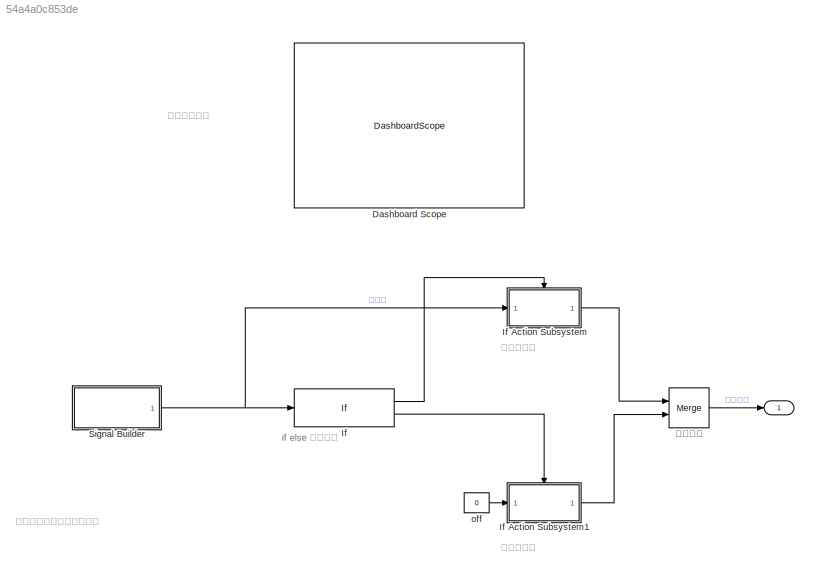
MODEL slx_54a4a0c853de
KIND model
CONFIG AbsTol = auto
CONFIG EnableMultiTasking = off
CONFIG FixedStep = 0.01
CONFIG MaxStep = auto
CONFIG MinStep = auto
CONFIG RelTol = 1e-3
CONFIG SampleTimeConstraint = Unconstrained
CONFIG Solver = FixedStepAuto
CONFIG SolverName = FixedStepAuto
CONFIG StartTime = 0.0
CONFIG StopTime = 20
BLOCK [Outport]  
BLOCK [DashboardScope] Dashboard Scope
  Ymax = 1
  Ymin = 0
BLOCK [If] If
  Ports = [1, 2]
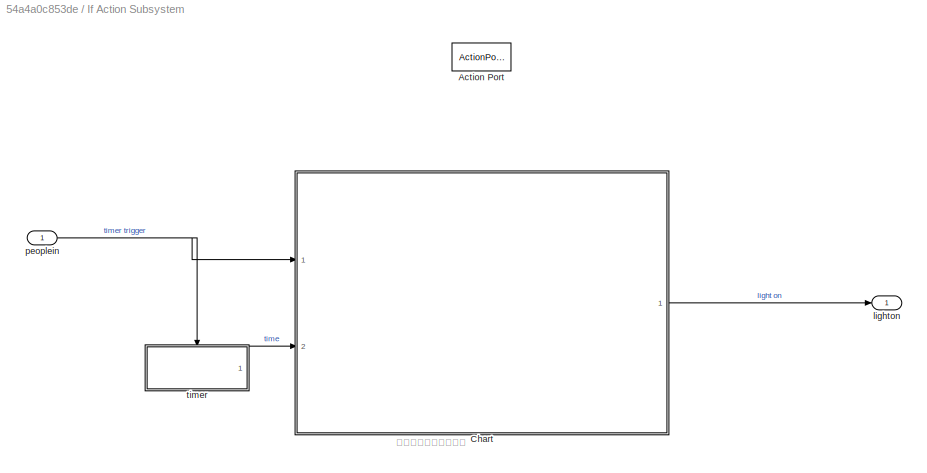
BLOCK [SubSystem] If Action Subsystem
  Ports = [1, 1, 0, 0, 0, 0, 0, 1]
  RequestExecContextInheritance = off
  TreatAsAtomicUnit = on
BLOCK [ActionPort] If Action Subsystem/Action Port
  ActionPortLabel = if(u1 > 0)
  InitializeStates = reset
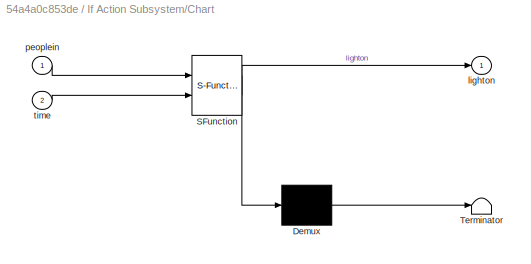
BLOCK [SubSystem] If Action Subsystem/Chart
  ErrorFcn = Stateflow.Translate.translate
  PermitHierarchicalResolution = ExplicitOnly
  Ports = [2, 1]
  RequestExecContextInheritance = off
  SFBlockType = Chart
  TreatAsAtomicUnit = on
BLOCK [Demux] If Action Subsystem/Chart/ Demux 
  Outputs = 1
  Ports = [1, 1]
BLOCK [S-Function] If Action Subsystem/Chart/ SFunction 
  EnableBusSupport = on
  FunctionName = sf_sfun
  PortCounts = [2 2]
  Ports = [2, 2]
  SFcnIsStateOwnerBlock = off
  SFunctionDeploymentMode = off
  Tag = Stateflow S-Function 3
BLOCK [Terminator] If Action Subsystem/Chart/ Terminator 
BLOCK [Outport] If Action Subsystem/Chart/lighton
BLOCK [Inport] If Action Subsystem/Chart/peoplein
BLOCK [Inport] If Action Subsystem/Chart/time
  Port = 2
BLOCK [Outport] If Action Subsystem/lighton
BLOCK [Inport] If Action Subsystem/peoplein
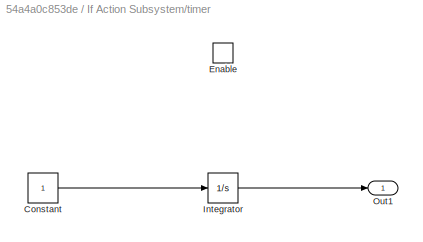
BLOCK [SubSystem] If Action Subsystem/timer
  Ports = [0, 1, 1]
  RequestExecContextInheritance = off
BLOCK [Constant] If Action Subsystem/timer/Constant
BLOCK [EnablePort] If Action Subsystem/timer/Enable
  Ports = []
BLOCK [Integrator] If Action Subsystem/timer/Integrator
  Ports = [1, 1]
BLOCK [Outport] If Action Subsystem/timer/Out1
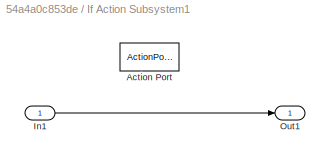
BLOCK [SubSystem] If Action Subsystem1
  Ports = [1, 1, 0, 0, 0, 0, 0, 1]
  RequestExecContextInheritance = off
  TreatAsAtomicUnit = on
BLOCK [ActionPort] If Action Subsystem1/Action Port
  ActionPortLabel = else
BLOCK [Inport] If Action Subsystem1/In1
BLOCK [Outport] If Action Subsystem1/Out1
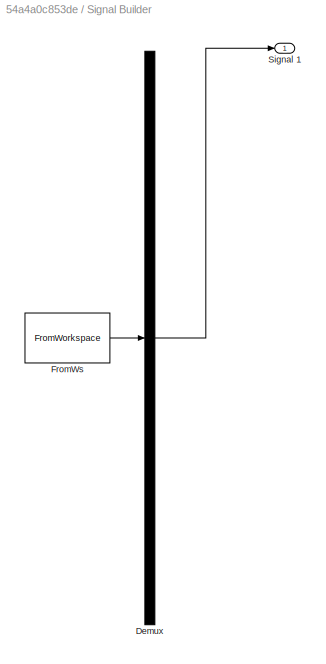
BLOCK [SubSystem] Signal Builder
  ClipboardFcn = sigbuilder_block('clipboard');
  CloseFcn = sigbuilder_block('close');
  ContinueFcn = sigbuilder_block('continue');
  CopyFcn = sigbuilder_block('copy');
  DeleteFcn = sigbuilder_block('delete');
  LoadFcn = sigbuilder_block('load');
  MaskHideContents = on
  ModelCloseFcn = sigbuilder_block('modelClose');
  NameChangeFcn = sigbuilder_block('namechange');
  OpenFcn = sigbuilder_block('open',[542.25 217.5 550.5 358.5 ]);
  PauseFcn = sigbuilder_block('pause');
  Ports = [0, 1]
  PreSaveFcn = sigbuilder_block('preSave');
  RequestExecContextInheritance = off
  StartFcn = sigbuilder_block('start');
  StopFcn = sigbuilder_block('stop');
  Tag = STV Subsys
BLOCK [Demux] Signal Builder/Demux
  DisplayOption = none
  Outputs = 1
  Ports = [1, 1]
  Tag = STV Demux
BLOCK [FromWorkspace] Signal Builder/FromWs
  Tag = STV FromWs
  VariableName = tuvar
BLOCK [Outport] Signal Builder/Signal 1
  Tag = STV Outport
BLOCK [Constant] off
  SampleTime = -1
  Value = 0
  VectorParams1D = off
BLOCK [Merge] 合并信号
  Ports = [2, 1]
ANNOTATION (root): if else 条件判断
ANNOTATION (root): 未进入区域
ANNOTATION (root): 模拟人经过照明区域的情况
ANNOTATION (root): 灯光控制效果
ANNOTATION (root): 进入了区域
ANNOTATION If Action Subsystem: 灯光覆盖区域状态监测
LINE If Action Subsystem/Chart:1 -> If Action Subsystem/lighton:1
NET If Action Subsystem/peoplein:1 -> If Action Subsystem/Chart:1, If Action Subsystem/timer:enable
LINE If Action Subsystem/timer/Constant:1 -> If Action Subsystem/timer/Integrator:1
LINE If Action Subsystem/timer/Integrator:1 -> If Action Subsystem/timer/Out1:1
LINE If Action Subsystem/timer:1 -> If Action Subsystem/Chart:2
LINE If Action Subsystem1/In1:1 -> If Action Subsystem1/Out1:1
LINE If Action Subsystem1:1 -> 合并信号:2
LINE If Action Subsystem:1 -> 合并信号:1
LINE If:1 -> If Action Subsystem:ifaction
LINE If:2 -> If Action Subsystem1:ifaction
NET Signal Builder:1 -> If Action Subsystem:1, If:1
LINE off:1 -> If Action Subsystem1:1
LINE 合并信号:1 ->  :1
note: NET lines group one-source signal fan-out (src -> all destinations, sorted); 1:1 wires keep LINE
CHART If Action
Subsystem/Chart states=2 transitions=3
  STATE_LABEL 'Leave_area\n\nen:lighton = 1;'
  STATE_LABEL 'In_area\n\nen:lighton = 0;'
CHART  states=0 transitions=0
